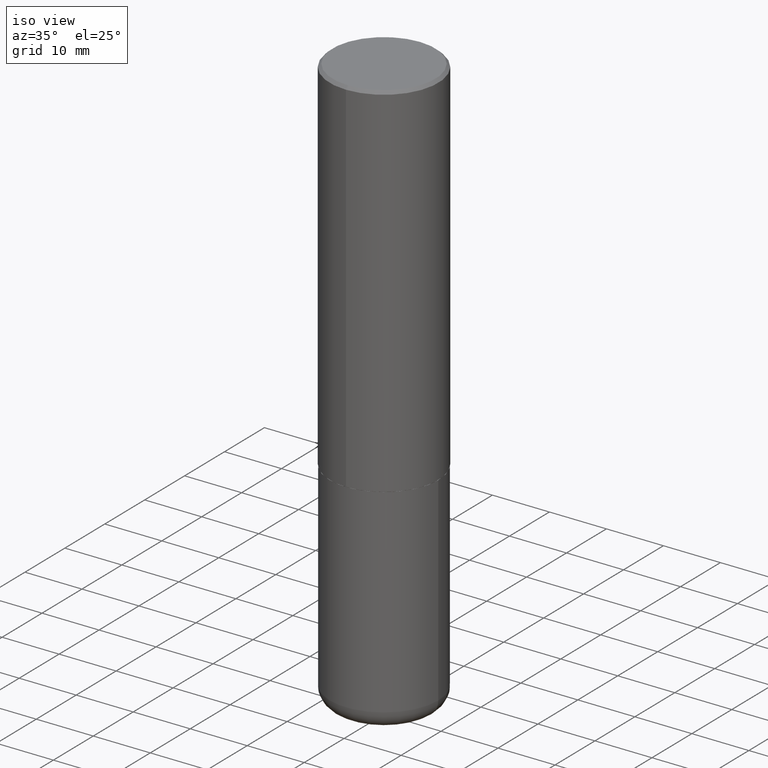
[diagram: clean part render]
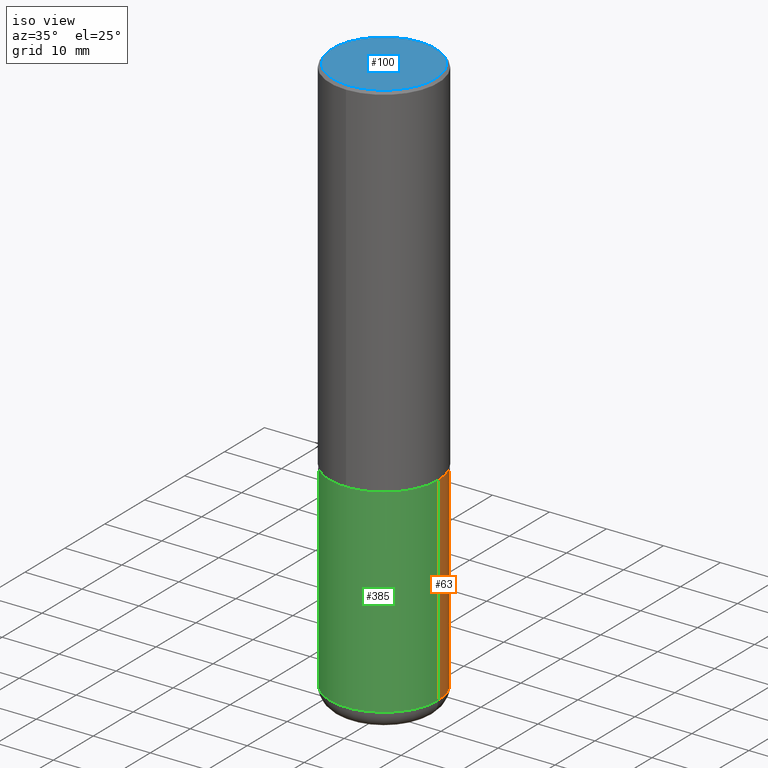
[diagram: same view with three faces highlighted in distinct colors, each labeled with its STEP entity id]
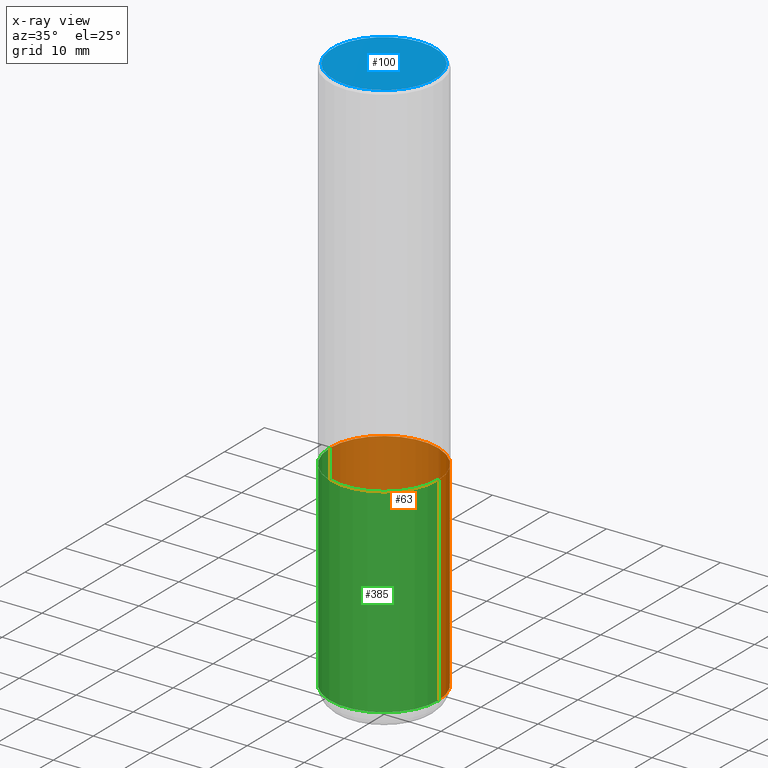
[diagram: x-ray of the same camera — body ghosted, the three highlighted faces saturated]
A machine part, iso view with three faces highlighted in distinct colors.
The next image is the same camera in x-ray (body ghosted, the three faces saturated) — at least one of them is partly hidden behind the body in this view.
Their STEP definitions:

[orange] entity #63 — the highlighted cylindrical surface (partial cylindrical patch) has radius 9.525 mm, axis along (-0, 0, 1).
#15 = DIRECTION ( 'NONE',  ( 1.000000000000000000, -6.982962677686265922E-15, 4.876176775795935793E-29 ) ) ;
#17 = LINE ( 'NONE', #276, #250 ) ;
#22 = EDGE_CURVE ( 'NONE', #69, #24, #367, .T. ) ;
#24 = VERTEX_POINT ( 'NONE', #239 ) ;
#42 = VERTEX_POINT ( 'NONE', #366 ) ;
#46 = AXIS2_PLACEMENT_3D ( 'NONE', #307, #270, #84 ) ;
#49 = FACE_OUTER_BOUND ( 'NONE', #326, .T. ) ;
#61 = ORIENTED_EDGE ( 'NONE', *, *, #381, .T. ) ;
#63 = ADVANCED_FACE ( 'NONE', ( #49 ), #115, .T. ) ;
#69 = VERTEX_POINT ( 'NONE', #302 ) ;
#76 = ORIENTED_EDGE ( 'NONE', *, *, #22, .F. ) ;
#78 = LINE ( 'NONE', #114, #321 ) ;
#84 = DIRECTION ( 'NONE',  ( 1.000000000000000000, -6.982962677686265922E-15, 0.000000000000000000 ) ) ;
#89 = CIRCLE ( 'NONE', #46, 0.3750000000000001110 ) ;
#111 = DIRECTION ( 'NONE',  ( -2.445468806185136597E-29, 3.491481338843145583E-15, 1.000000000000000000 ) ) ;
#114 = CARTESIAN_POINT ( 'NONE',  ( -0.3750000000000001110, 2.664535259100376486E-15, -1.844600658845590159E-29 ) ) ;
#115 = CYLINDRICAL_SURFACE ( 'NONE', #387, 0.3750000000000001110 ) ;
#147 = DIRECTION ( 'NONE',  ( -2.445468806185136597E-29, 3.491481338843145583E-15, 1.000000000000000000 ) ) ;
#166 = CARTESIAN_POINT ( 'NONE',  ( 6.113672015462840371E-29, -8.728703347107863365E-15, -2.499999999999999556 ) ) ;
#168 = ORIENTED_EDGE ( 'NONE', *, *, #256, .F. ) ;
#239 = CARTESIAN_POINT ( 'NONE',  ( -0.3750000000000000555, -8.464561508462148949E-15, -2.499999999999999556 ) ) ;
#249 = CARTESIAN_POINT ( 'NONE',  ( 0.000000000000000000, 0.000000000000000000, 0.000000000000000000 ) ) ;
#250 = VECTOR ( 'NONE', #405, 39.37007874015748143 ) ;
#256 = EDGE_CURVE ( 'NONE', #285, #69, #17, .T. ) ;
#260 = ORIENTED_EDGE ( 'NONE', *, *, #417, .T. ) ;
#269 = DIRECTION ( 'NONE',  ( 1.000000000000000000, -6.982962677686264344E-15, 0.000000000000000000 ) ) ;
#270 = DIRECTION ( 'NONE',  ( -2.445468806185136597E-29, 3.491481338843145583E-15, 1.000000000000000000 ) ) ;
#276 = CARTESIAN_POINT ( 'NONE',  ( 0.3750000000000001110, -2.618611004132350411E-15, 1.828566290923476483E-29 ) ) ;
#285 = VERTEX_POINT ( 'NONE', #333 ) ;
#302 = CARTESIAN_POINT ( 'NONE',  ( 0.3750000000000000555, -1.134731435124021180E-14, -2.499999999999999556 ) ) ;
#307 = CARTESIAN_POINT ( 'NONE',  ( 9.476191623967404313E-29, -1.352949018801718908E-14, -3.875000000000000000 ) ) ;
#321 = VECTOR ( 'NONE', #403, 39.37007874015748143 ) ;
#326 = EDGE_LOOP ( 'NONE', ( #61, #260, #76, #168 ) ) ;
#333 = CARTESIAN_POINT ( 'NONE',  ( 0.3750000000000001110, -1.614810119214954068E-14, -3.875000000000000000 ) ) ;
#361 = AXIS2_PLACEMENT_3D ( 'NONE', #166, #111, #269 ) ;
#366 = CARTESIAN_POINT ( 'NONE',  ( -0.3750000000000001110, -1.086495492891681181E-14, -3.875000000000000000 ) ) ;
#367 = CIRCLE ( 'NONE', #361, 0.3750000000000000555 ) ;
#381 = EDGE_CURVE ( 'NONE', #285, #42, #89, .T. ) ;
#387 = AXIS2_PLACEMENT_3D ( 'NONE', #249, #147, #15 ) ;
#403 = DIRECTION ( 'NONE',  ( -2.445468806185136877E-29, 3.491481338843145188E-15, 1.000000000000000000 ) ) ;
#405 = DIRECTION ( 'NONE',  ( -2.445468806185136877E-29, 3.491481338843145188E-15, 1.000000000000000000 ) ) ;
#417 = EDGE_CURVE ( 'NONE', #42, #24, #78, .T. ) ;

[blue] entity #100 — the highlighted planar face has unit normal (0, -0, -1).
#13 = DIRECTION ( 'NONE',  ( -2.444544534276841438E-29, 3.492804948822114088E-15, 1.000000000000000000 ) ) ;
#25 = AXIS2_PLACEMENT_3D ( 'NONE', #241, #337, #377 ) ;
#31 = ORIENTED_EDGE ( 'NONE', *, *, #220, .T. ) ;
#81 = DIRECTION ( 'NONE',  ( -2.444544534276841438E-29, 3.492804948822114088E-15, 1.000000000000000000 ) ) ;
#95 = VERTEX_POINT ( 'NONE', #248 ) ;
#100 = ADVANCED_FACE ( 'NONE', ( #404 ), #181, .F. ) ;
#132 = VERTEX_POINT ( 'NONE', #345 ) ;
#137 = DIRECTION ( 'NONE',  ( -6.982962677686266711E-15, -1.000000000000000000, 3.492804948822114482E-15 ) ) ;
#167 = ORIENTED_EDGE ( 'NONE', *, *, #338, .T. ) ;
#171 = CIRCLE ( 'NONE', #182, 0.3550000000000001488 ) ;
#181 = PLANE ( 'NONE',  #25 ) ;
#182 = AXIS2_PLACEMENT_3D ( 'NONE', #402, #13, #137 ) ;
#217 = DIRECTION ( 'NONE',  ( -6.982962677686266711E-15, -1.000000000000000000, 3.492804948822114482E-15 ) ) ;
#220 = EDGE_CURVE ( 'NONE', #132, #95, #171, .T. ) ;
#231 = AXIS2_PLACEMENT_3D ( 'NONE', #268, #81, #217 ) ;
#241 = CARTESIAN_POINT ( 'NONE',  ( 2.478951750578625787E-15, 0.3550000000000001488, -1.333618090842793268E-15 ) ) ;
#248 = CARTESIAN_POINT ( 'NONE',  ( 2.548781377355488296E-15, 0.3550000000000001488, -1.427290424853735415E-15 ) ) ;
#262 = EDGE_LOOP ( 'NONE', ( #167, #31 ) ) ;
#268 = CARTESIAN_POINT ( 'NONE',  ( 4.579723842388064751E-45, -6.543583836022733140E-31, -1.873446680218842448E-16 ) ) ;
#280 = CIRCLE ( 'NONE', #231, 0.3550000000000001488 ) ;
#337 = DIRECTION ( 'NONE',  ( 2.444544534276840877E-29, -3.492804948822114482E-15, -1.000000000000000000 ) ) ;
#338 = EDGE_CURVE ( 'NONE', #95, #132, #280, .T. ) ;
#345 = CARTESIAN_POINT ( 'NONE',  ( -2.504081769186609399E-15, -0.3550000000000001488, 1.052601088809966826E-15 ) ) ;
#377 = DIRECTION ( 'NONE',  ( 6.982962677686265922E-15, 1.000000000000000000, -3.492804948822114482E-15 ) ) ;
#402 = CARTESIAN_POINT ( 'NONE',  ( 4.579723842388064751E-45, -6.543583836022733140E-31, -1.873446680218842448E-16 ) ) ;
#404 = FACE_OUTER_BOUND ( 'NONE', #262, .T. ) ;

[green] entity #385 — the highlighted cylindrical surface (partial cylindrical patch) has radius 9.525 mm, axis along (-0, 0, 1).
#17 = LINE ( 'NONE', #276, #250 ) ;
#24 = VERTEX_POINT ( 'NONE', #239 ) ;
#32 = DIRECTION ( 'NONE',  ( 1.000000000000000000, -6.982962677686265922E-15, 0.000000000000000000 ) ) ;
#42 = VERTEX_POINT ( 'NONE', #366 ) ;
#50 = CYLINDRICAL_SURFACE ( 'NONE', #368, 0.3750000000000001110 ) ;
#65 = CARTESIAN_POINT ( 'NONE',  ( 9.476191623967404313E-29, -1.352949018801718908E-14, -3.875000000000000000 ) ) ;
#69 = VERTEX_POINT ( 'NONE', #302 ) ;
#77 = DIRECTION ( 'NONE',  ( 1.000000000000000000, -6.982962677686264344E-15, 0.000000000000000000 ) ) ;
#78 = LINE ( 'NONE', #114, #321 ) ;
#86 = EDGE_CURVE ( 'NONE', #24, #69, #88, .T. ) ;
#88 = CIRCLE ( 'NONE', #219, 0.3750000000000000555 ) ;
#114 = CARTESIAN_POINT ( 'NONE',  ( -0.3750000000000001110, 2.664535259100376486E-15, -1.844600658845590159E-29 ) ) ;
#117 = CIRCLE ( 'NONE', #348, 0.3750000000000001110 ) ;
#148 = ORIENTED_EDGE ( 'NONE', *, *, #256, .T. ) ;
#155 = ORIENTED_EDGE ( 'NONE', *, *, #325, .T. ) ;
#170 = DIRECTION ( 'NONE',  ( 1.000000000000000000, -6.982962677686265922E-15, 4.876176775795935793E-29 ) ) ;
#191 = EDGE_LOOP ( 'NONE', ( #384, #155, #148, #261 ) ) ;
#219 = AXIS2_PLACEMENT_3D ( 'NONE', #374, #278, #77 ) ;
#239 = CARTESIAN_POINT ( 'NONE',  ( -0.3750000000000000555, -8.464561508462148949E-15, -2.499999999999999556 ) ) ;
#250 = VECTOR ( 'NONE', #405, 39.37007874015748143 ) ;
#256 = EDGE_CURVE ( 'NONE', #285, #69, #17, .T. ) ;
#261 = ORIENTED_EDGE ( 'NONE', *, *, #86, .F. ) ;
#276 = CARTESIAN_POINT ( 'NONE',  ( 0.3750000000000001110, -2.618611004132350411E-15, 1.828566290923476483E-29 ) ) ;
#278 = DIRECTION ( 'NONE',  ( -2.445468806185136597E-29, 3.491481338843145583E-15, 1.000000000000000000 ) ) ;
#285 = VERTEX_POINT ( 'NONE', #333 ) ;
#301 = DIRECTION ( 'NONE',  ( -2.445468806185136597E-29, 3.491481338843145583E-15, 1.000000000000000000 ) ) ;
#302 = CARTESIAN_POINT ( 'NONE',  ( 0.3750000000000000555, -1.134731435124021180E-14, -2.499999999999999556 ) ) ;
#303 = FACE_OUTER_BOUND ( 'NONE', #191, .T. ) ;
#321 = VECTOR ( 'NONE', #403, 39.37007874015748143 ) ;
#323 = DIRECTION ( 'NONE',  ( -2.445468806185136597E-29, 3.491481338843145583E-15, 1.000000000000000000 ) ) ;
#325 = EDGE_CURVE ( 'NONE', #42, #285, #117, .T. ) ;
#333 = CARTESIAN_POINT ( 'NONE',  ( 0.3750000000000001110, -1.614810119214954068E-14, -3.875000000000000000 ) ) ;
#348 = AXIS2_PLACEMENT_3D ( 'NONE', #65, #323, #32 ) ;
#366 = CARTESIAN_POINT ( 'NONE',  ( -0.3750000000000001110, -1.086495492891681181E-14, -3.875000000000000000 ) ) ;
#368 = AXIS2_PLACEMENT_3D ( 'NONE', #373, #301, #170 ) ;
#373 = CARTESIAN_POINT ( 'NONE',  ( 0.000000000000000000, 0.000000000000000000, 0.000000000000000000 ) ) ;
#374 = CARTESIAN_POINT ( 'NONE',  ( 6.113672015462840371E-29, -8.728703347107863365E-15, -2.499999999999999556 ) ) ;
#384 = ORIENTED_EDGE ( 'NONE', *, *, #417, .F. ) ;
#385 = ADVANCED_FACE ( 'NONE', ( #303 ), #50, .T. ) ;
#403 = DIRECTION ( 'NONE',  ( -2.445468806185136877E-29, 3.491481338843145188E-15, 1.000000000000000000 ) ) ;
#405 = DIRECTION ( 'NONE',  ( -2.445468806185136877E-29, 3.491481338843145188E-15, 1.000000000000000000 ) ) ;
#417 = EDGE_CURVE ( 'NONE', #42, #24, #78, .T. ) ;